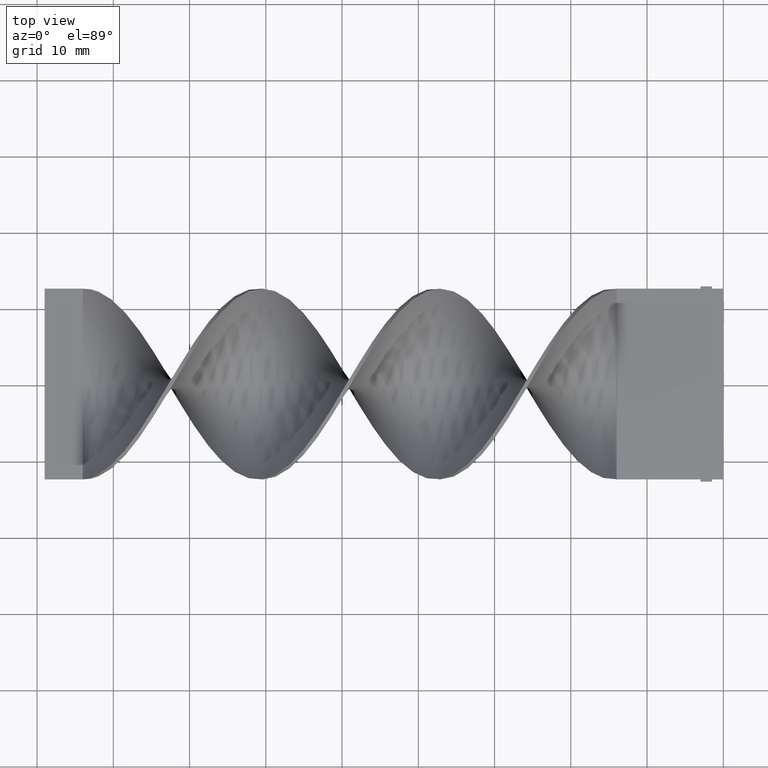
[diagram: clean part render]
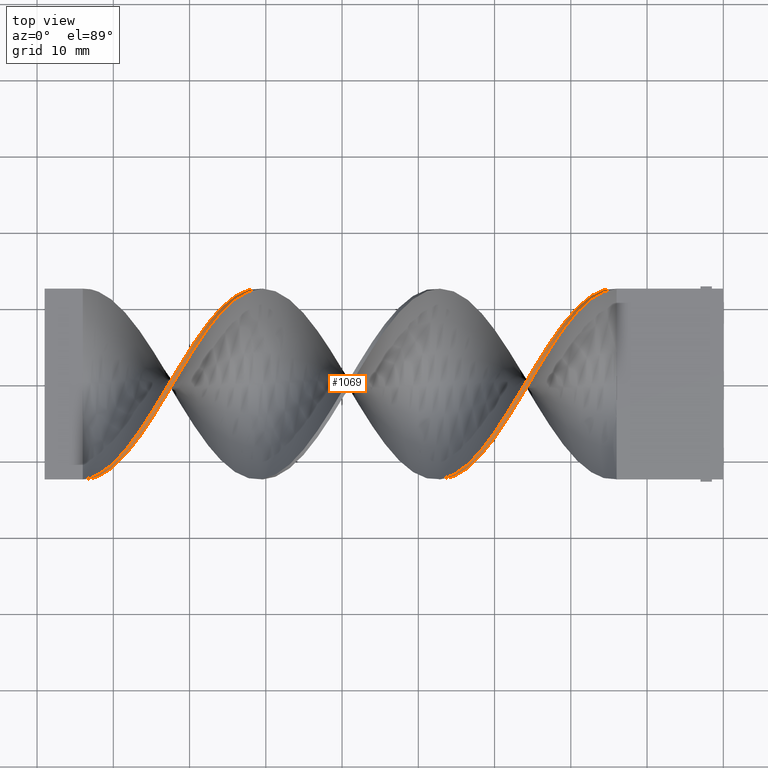
[diagram: same view with one face highlighted and labeled with its STEP entity id]
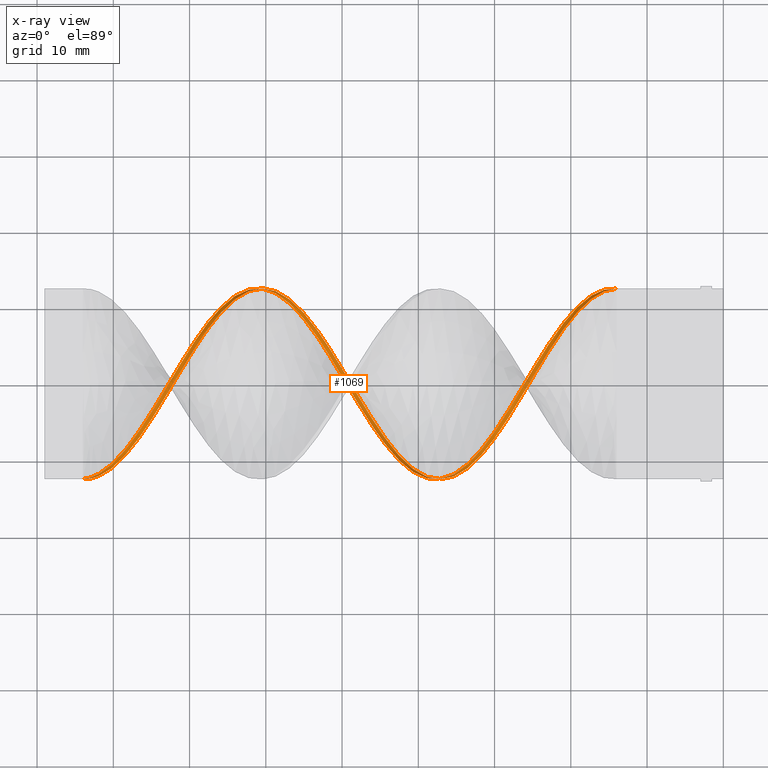
[diagram: x-ray of the same camera — body ghosted, the highlighted face saturated]
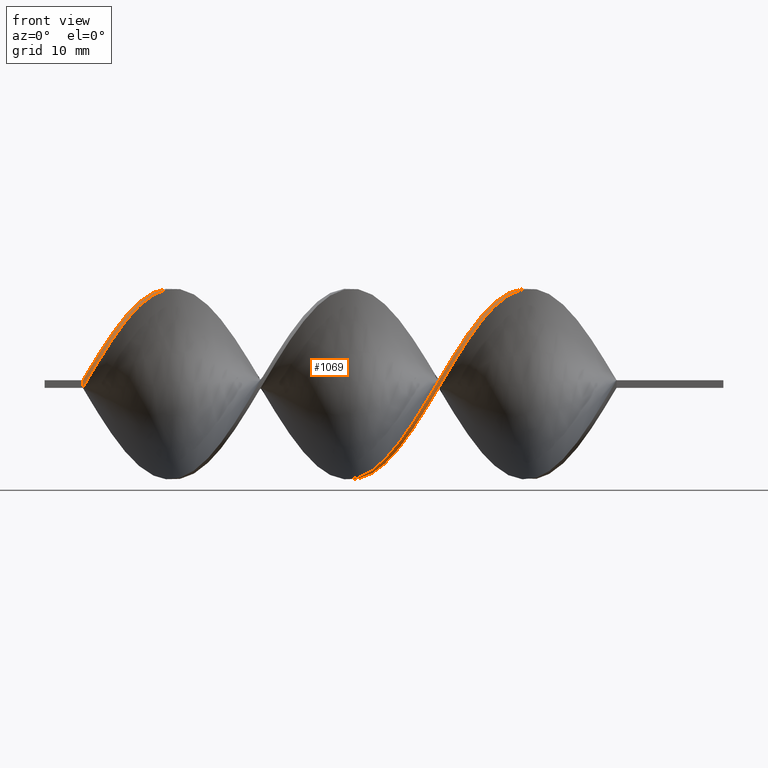
[diagram: same view with one face highlighted and labeled with its STEP entity id]
A machine part, top view. The second image highlights one B-rep face of the part: STEP entity #1069.
The next image is the same camera in x-ray: the body ghosted, the highlighted face saturated — about 2% of this face is hidden behind the body in this view.
A second angle (front view) of the same face is appended — the face is thin or edge-on in the first view.
In plain terms, the highlighted face is a freeform B-spline surface patch.
Its self-contained STEP definition (entity closure, byte-faithful):
#1 = CARTESIAN_POINT ( 'NONE',  ( -61.56410256410256920, 12.56071099161113125, 1.017774790278256569 ) ) ;
#3 = CARTESIAN_POINT ( 'NONE',  ( -19.38461538461538325, 9.687945681259160224, 7.914777853924387152 ) ) ;
#6 = CARTESIAN_POINT ( 'NONE',  ( -40.02564102564102200, -11.95215010832773217, -3.994174999484630284 ) ) ;
#8 = CARTESIAN_POINT ( 'NONE',  ( -23.87179487179487580, 2.524380470717862757, 12.34645007188563959 ) ) ;
#11 = CARTESIAN_POINT ( 'NONE',  ( -38.23076923076922640, -12.56071099161113480, -1.017774790278253905 ) ) ;
#13 = CARTESIAN_POINT ( 'NONE',  ( -22.07692307692308376, 6.297684876700516909, 10.91542446871784477 ) ) ;
#15 = CARTESIAN_POINT ( 'NONE',  ( -66.05128205128204399, 9.024823023018365475, 8.663288602095489566 ) ) ;
#22 = CARTESIAN_POINT ( 'NONE',  ( -78.61538461538461320, -9.687945681259160224, 7.914777853924392481 ) ) ;
#24 = CARTESIAN_POINT ( 'NONE',  ( -52.58974358974359120, 5.405725462660103453, -11.38356088229227225 ) ) ;
#28 = CARTESIAN_POINT ( 'NONE',  ( -68.74358974358973740, 5.405725462660112335, 11.38356088229227048 ) ) ;
#36 = EDGE_CURVE ( 'NONE', #1260, #1604, #1366, .T. ) ;
#38 = CARTESIAN_POINT ( 'NONE',  ( -78.61538461538461320, -9.024823023018365475, 8.663288602095494895 ) ) ;
#39 = CARTESIAN_POINT ( 'NONE',  ( -23.87179487179487580, 2.524380470717862757, 12.34645007188564136 ) ) ;
#40 = CARTESIAN_POINT ( 'NONE',  ( -31.05128205128205821, -7.972909339725124056, 9.759100511780301801 ) ) ;
#42 = CARTESIAN_POINT ( 'NONE',  ( -61.56410256410256920, 12.43928900838886875, 2.017774790278256791 ) ) ;
#46 = CARTESIAN_POINT ( 'NONE',  ( -65.15384615384614619, 10.64897370504628782, 6.738448275956367972 ) ) ;
#52 = CARTESIAN_POINT ( 'NONE',  ( -20.28205128205128460, 7.972909339725125832, 9.759100511780298248 ) ) ;
#62 = CARTESIAN_POINT ( 'NONE',  ( -16.69230769230769695, 11.59494076297487375, 4.936058634336738749 ) ) ;
#66 = CARTESIAN_POINT ( 'NONE',  ( -33.74358974358974450, -11.30056190668700822, 5.366311637720503569 ) ) ;
#77 = CARTESIAN_POINT ( 'NONE',  ( -84.00000000000000000, -12.50000000000000178, 0.1666666666666682117 ) ) ;
#81 = CARTESIAN_POINT ( 'NONE',  ( -60.66666666666666430, 12.49999999999999822, 0.5000000000000000000 ) ) ;
#87 = FACE_OUTER_BOUND ( 'NONE', #213, .T. ) ;
#93 = CARTESIAN_POINT ( 'NONE',  ( -40.02564102564102200, -11.59494076297487730, -4.936058634336734308 ) ) ;
#95 = CARTESIAN_POINT ( 'NONE',  ( -19.38461538461538325, 9.687945681259160224, 7.914777853924387152 ) ) ;
#101 = CARTESIAN_POINT ( 'NONE',  ( -42.71794871794872250, -9.024823023018370804, -8.663288602095487789 ) ) ;
#104 = CARTESIAN_POINT ( 'NONE',  ( -84.00000000000000000, -12.50000000000000178, 0.5000000000000015543 ) ) ;
#116 = CARTESIAN_POINT ( 'NONE',  ( -41.82051282051281760, -10.64897370504629315, -6.738448275956367084 ) ) ;
#117 = CARTESIAN_POINT ( 'NONE',  ( -34.64102564102564230, -11.95215010832773039, 3.994174999484638722 ) ) ;
#119 = CARTESIAN_POINT ( 'NONE',  ( -79.51282051282051100, -10.07673670631160867, 7.567476692410685324 ) ) ;
#127 = CARTESIAN_POINT ( 'NONE',  ( -80.41025641025640880, -11.30056190668700822, 5.366311637720503569 ) ) ;
#130 = CARTESIAN_POINT ( 'NONE',  ( -82.20512820512820440, -12.25643054996943171, 2.505974894881450421 ) ) ;
#132 = CARTESIAN_POINT ( 'NONE',  ( -51.69230769230769340, 3.965052966688984881, -11.86500547708895326 ) ) ;
#136 = CARTESIAN_POINT ( 'NONE',  ( -28.35897435897435770, -3.965052966688987546, 11.86500547708895326 ) ) ;
#142 = CARTESIAN_POINT ( 'NONE',  ( -40.92307692307691980, -11.30056190668700999, -5.366311637720500904 ) ) ;
#144 = CARTESIAN_POINT ( 'NONE',  ( -25.66666666666666785, 0.5036723384328402053, 12.59180846082103855 ) ) ;
#145 = CARTESIAN_POINT ( 'NONE',  ( -41.82051282051281760, -10.07673670631161222, -7.567476692410682659 ) ) ;
#152 = CARTESIAN_POINT ( 'NONE',  ( -73.23076923076924061, -1.010354066142510998, 12.46912926635333640 ) ) ;
#153 = CARTESIAN_POINT ( 'NONE',  ( -25.66666666666666785, -0.5036723384328426478, 12.59180846082103855 ) ) ;
#163 = CARTESIAN_POINT ( 'NONE',  ( -65.15384615384614619, 10.07673670631160512, 7.567476692410683548 ) ) ;
#164 = CARTESIAN_POINT ( 'NONE',  ( -74.12820512820512420, -2.524380470717864977, 12.34645007188564136 ) ) ;
#166 = CARTESIAN_POINT ( 'NONE',  ( -74.12820512820510999, -2.524380470717864977, 12.34645007188563959 ) ) ;
#167 = CARTESIAN_POINT ( 'NONE',  ( -30.15384615384615330, -6.689317401192620416, 10.57133069703628436 ) ) ;
#169 = CARTESIAN_POINT ( 'NONE',  ( -62.46153846153845990, 12.25643054996942816, 2.505974894881445980 ) ) ;
#195 = CARTESIAN_POINT ( 'NONE',  ( -17.58974358974358765, 11.30056190668700822, 5.366311637720501793 ) ) ;
#203 = CARTESIAN_POINT ( 'NONE',  ( -31.05128205128205465, -7.972909339725124944, 9.759100511780301801 ) ) ;
#213 = EDGE_LOOP ( 'NONE', ( #267, #994, #1220, #1198 ) ) ;
#216 = CARTESIAN_POINT ( 'NONE',  ( -17.58974358974358765, 10.83583873464323943, 6.251767663373711592 ) ) ;
#221 = CARTESIAN_POINT ( 'NONE',  ( -15.79487179487179205, 12.25643054996942816, 2.505974894881445980 ) ) ;
#225 = CARTESIAN_POINT ( 'NONE',  ( -25.66666666666666785, -0.5036723384328426478, 12.59180846082103855 ) ) ;
#226 = CARTESIAN_POINT ( 'NONE',  ( -14.89743589743589602, 12.56071099161113125, 1.017774790278256569 ) ) ;
#232 = CARTESIAN_POINT ( 'NONE',  ( -33.74358974358974450, -11.30056190668700822, 5.366311637720503569 ) ) ;
#235 = CARTESIAN_POINT ( 'NONE',  ( -45.41025641025640880, -6.297684876700524903, -10.91542446871784122 ) ) ;
#238 = CARTESIAN_POINT ( 'NONE',  ( -26.56410256410256210, -2.003062940240564860, 12.34859258609801458 ) ) ;
#241 = CARTESIAN_POINT ( 'NONE',  ( -63.35897435897436480, 11.95215010832772862, 3.994174999484634281 ) ) ;
#245 = CARTESIAN_POINT ( 'NONE',  ( -14.89743589743589602, 12.56071099161113303, 1.017774790278256791 ) ) ;
#247 = CARTESIAN_POINT ( 'NONE',  ( -48.10256410256410220, -2.003062940240573742, -12.34859258609801280 ) ) ;
#248 = CARTESIAN_POINT ( 'NONE',  ( -76.82051282051281760, -7.512301267086276546, 10.00326595030512955 ) ) ;
#251 = CARTESIAN_POINT ( 'NONE',  ( -46.30769230769230660, -4.900069209374408707, -11.51040059004641591 ) ) ;
#258 = CARTESIAN_POINT ( 'NONE',  ( -33.74358974358974450, -10.83583873464324121, 6.251767663373713368 ) ) ;
#261 = CARTESIAN_POINT ( 'NONE',  ( -13.99999999999999822, 12.49999999999999822, -0.5000000000000000000 ) ) ;
#263 = CARTESIAN_POINT ( 'NONE',  ( -73.23076923076924061, -2.003062940240564860, 12.34859258609801458 ) ) ;
#265 = CARTESIAN_POINT ( 'NONE',  ( -58.87179487179486870, 12.01711488568186681, -3.476916712307509094 ) ) ;
#267 = ORIENTED_EDGE ( 'NONE', *, *, #365, .T. ) ;
#276 =( BOUNDED_CURVE ( )  B_SPLINE_CURVE ( 2, ( #989, #968, #720, #474, #216, #1352, #1113, #1465, #337, #624, #728, #8, #1217, #225, #238, #1606, #1234, #492, #1483, #977, #1361, #883, #232, #117, #1498, #1615, #890, #1492, #860, #93, #374, #594, #101, #1091, #603, #656, #645, #1143, #1012, #1128, #400, #1262, #794, #1023, #1517, #1008, #1159, #392, #384, #672, #522, #787, #1506, #42, #1280, #543, #538, #163, #15, #1153, #528, #28, #1037, #899, #514, #1535, #263, #915, #924, #416, #248, #1257, #22, #1270, #1392, #641, #130, #764, #780 ),
 .UNSPECIFIED., .F., .T. ) 
 B_SPLINE_CURVE_WITH_KNOTS ( ( 3, 2, 2, 2, 2, 2, 2, 2, 2, 2, 2, 2, 2, 2, 2, 2, 2, 2, 2, 2, 2, 2, 2, 2, 2, 2, 2, 2, 2, 2, 2, 2, 2, 2, 2, 2, 2, 2, 2, 3 ),
 ( 0.000000000000000000, 0.01923076923076923184, 0.03846153846153846367, 0.05769230769230768857, 0.07692307692307692735, 0.09615384615384615918, 0.1153846153846153771, 0.1346153846153846090, 0.1538461538461538547, 0.1730769230769230449, 0.1923076923076923184, 0.2115384615384615363, 0.2307692307692307543, 0.2500000000000000000, 0.2692307692307692180, 0.2884615384615384359, 0.3076923076923077094, 0.3269230769230769273, 0.3461538461538460898, 0.3653846153846153633, 0.3846153846153846367, 0.4038461538461539102, 0.4230769230769230727, 0.4423076923076922906, 0.4615384615384615086, 0.4807692307692307820, 0.5000000000000000000, 0.5192307692307692735, 0.5384615384615384359, 0.5576923076923077094, 0.5769230769230768718, 0.5961538461538461453, 0.6153846153846154188, 0.6346153846153845812, 0.6538461538461538547, 0.6730769230769230171, 0.6923076923076921796, 0.7115384615384615641, 0.7307692307692307265, 0.7500000000000000000 ),
 .UNSPECIFIED. ) 
 CURVE ( )  GEOMETRIC_REPRESENTATION_ITEM ( )  RATIONAL_B_SPLINE_CURVE ( ( 1.000000000000000000, 0.9927088740980539727, 1.000000000000000000, 0.9927088740980539727, 1.000000000000000000, 0.9927088740980539727, 1.000000000000000000, 0.9927088740980539727, 1.000000000000000000, 0.9927088740980539727, 1.000000000000000000, 0.9927088740980539727, 1.000000000000000000, 0.9927088740980539727, 1.000000000000000000, 0.9927088740980539727, 1.000000000000000000, 0.9927088740980539727, 1.000000000000000000, 0.9927088740980539727, 1.000000000000000000, 0.9927088740980539727, 1.000000000000000000, 0.9927088740980539727, 1.000000000000000000, 0.9927088740980539727, 1.000000000000000000, 0.9927088740980539727, 1.000000000000000000, 0.9927088740980539727, 1.000000000000000000, 0.9927088740980539727, 1.000000000000000000, 0.9927088740980539727, 1.000000000000000000, 0.9927088740980539727, 1.000000000000000000, 0.9927088740980539727, 1.000000000000000000, 0.9927088740980539727, 1.000000000000000000, 0.9927088740980539727, 1.000000000000000000, 0.9927088740980539727, 1.000000000000000000, 0.9927088740980539727, 1.000000000000000000, 0.9927088740980539727, 1.000000000000000000, 0.9927088740980539727, 1.000000000000000000, 0.9927088740980539727, 1.000000000000000000, 0.9927088740980539727, 1.000000000000000000, 0.9927088740980539727, 1.000000000000000000, 0.9927088740980539727, 1.000000000000000000, 0.9927088740980539727, 1.000000000000000000, 0.9927088740980539727, 1.000000000000000000, 0.9927088740980539727, 1.000000000000000000, 0.9927088740980539727, 1.000000000000000000, 0.9927088740980539727, 1.000000000000000000, 0.9927088740980539727, 1.000000000000000000, 0.9927088740980539727, 1.000000000000000000, 0.9927088740980539727, 1.000000000000000000, 0.9927088740980539727, 1.000000000000000000, 0.9927088740980539727, 1.000000000000000000 ) ) 
 REPRESENTATION_ITEM ( '' )  );
#278 = CARTESIAN_POINT ( 'NONE',  ( -70.53846153846153300, 3.502453542048288071, 12.10537671137499238 ) ) ;
#281 = CARTESIAN_POINT ( 'NONE',  ( -75.92307692307693401, -6.297684876700518686, 10.91542446871784477 ) ) ;
#294 = CARTESIAN_POINT ( 'NONE',  ( -83.10256410256410220, -12.43928900838887230, 2.017774790278262564 ) ) ;
#305 = CARTESIAN_POINT ( 'NONE',  ( -70.53846153846153300, 2.524380470717862757, 12.34645007188564136 ) ) ;
#307 = CARTESIAN_POINT ( 'NONE',  ( -36.43589743589743790, -12.56071099161113658, 1.017774790278262564 ) ) ;
#310 = CARTESIAN_POINT ( 'NONE',  ( -69.64102564102564941, 4.900069209374403378, 11.51040059004641591 ) ) ;
#314 = CARTESIAN_POINT ( 'NONE',  ( -20.28205128205128460, 8.726917657472036183, 9.091107431892412549 ) ) ;
#337 = CARTESIAN_POINT ( 'NONE',  ( -21.17948717948717885, 6.689317401192619528, 10.57133069703628259 ) ) ;
#344 = CARTESIAN_POINT ( 'NONE',  ( -46.30769230769230660, -4.900069209374408707, -11.51040059004641591 ) ) ;
#358 = CARTESIAN_POINT ( 'NONE',  ( -18.48717948717948545, 10.07673670631160689, 7.567476692410683548 ) ) ;
#365 = EDGE_CURVE ( 'NONE', #1612, #1260, #466, .T. ) ;
#369 = CARTESIAN_POINT ( 'NONE',  ( -47.20512820512820440, -3.502453542048290736, -12.10537671137499238 ) ) ;
#374 = CARTESIAN_POINT ( 'NONE',  ( -40.92307692307691980, -10.83583873464324299, -6.251767663373710704 ) ) ;
#380 = CARTESIAN_POINT ( 'NONE',  ( -26.56410256410256210, -1.010354066142510998, 12.46912926635333640 ) ) ;
#384 = CARTESIAN_POINT ( 'NONE',  ( -57.07692307692307310, 11.30056190668700289, -5.366311637720509786 ) ) ;
#387 = CARTESIAN_POINT ( 'NONE',  ( -35.53846153846153300, -12.01711488568187214, 3.476916712307501989 ) ) ;
#390 = CARTESIAN_POINT ( 'NONE',  ( -77.71794871794872961, -8.726917657472034406, 9.091107431892414326 ) ) ;
#392 = CARTESIAN_POINT ( 'NONE',  ( -56.17948717948717530, 10.64897370504628604, -6.738448275956370637 ) ) ;
#395 = CARTESIAN_POINT ( 'NONE',  ( -56.17948717948717530, 10.07673670631160334, -7.567476692410687100 ) ) ;
#400 = CARTESIAN_POINT ( 'NONE',  ( -49.89743589743589069, 2.003062940240554202, -12.34859258609801635 ) ) ;
#404 = CARTESIAN_POINT ( 'NONE',  ( -72.33333333333332860, 0.5036723384328403164, 12.59180846082103855 ) ) ;
#405 = CARTESIAN_POINT ( 'NONE',  ( -26.56410256410256210, -2.003062940240564860, 12.34859258609801458 ) ) ;
#412 = CARTESIAN_POINT ( 'NONE',  ( -28.35897435897435770, -4.900069209374403378, 11.51040059004641769 ) ) ;
#413 = CARTESIAN_POINT ( 'NONE',  ( -75.02564102564102200, -4.900069209374403378, 11.51040059004641769 ) ) ;
#416 = CARTESIAN_POINT ( 'NONE',  ( -75.92307692307691980, -6.297684876700517798, 10.91542446871784655 ) ) ;
#427 = CARTESIAN_POINT ( 'NONE',  ( -65.15384615384614619, 10.64897370504628782, 6.738448275956367084 ) ) ;
#430 = CARTESIAN_POINT ( 'NONE',  ( -56.17948717948717530, 10.64897370504628604, -6.738448275956371525 ) ) ;
#434 = CARTESIAN_POINT ( 'NONE',  ( -66.05128205128204399, 9.687945681259160224, 7.914777853924387152 ) ) ;
#441 = CARTESIAN_POINT ( 'NONE',  ( -50.79487179487178850, 3.502453542048282742, -12.10537671137499238 ) ) ;
#453 = CARTESIAN_POINT ( 'NONE',  ( -40.02564102564102200, -11.59494076297487730, -4.936058634336734308 ) ) ;
#454 = CARTESIAN_POINT ( 'NONE',  ( -77.71794871794872961, -7.972909339725124056, 9.759100511780301801 ) ) ;
#464 = CARTESIAN_POINT ( 'NONE',  ( -64.25641025641024839, 10.83583873464323943, 6.251767663373711592 ) ) ;
#466 = LINE ( 'NONE', #719, #469 ) ;
#469 = VECTOR ( 'NONE', #592, 1000.000000000000000 ) ;
#474 = CARTESIAN_POINT ( 'NONE',  ( -16.69230769230769340, 11.59494076297487375, 4.936058634336738749 ) ) ;
#478 = CARTESIAN_POINT ( 'NONE',  ( -21.17948717948717885, 7.512301267086275658, 10.00326595030512777 ) ) ;
#483 = CARTESIAN_POINT ( 'NONE',  ( -54.38461538461538680, 7.972909339725115174, -9.759100511780305354 ) ) ;
#492 = CARTESIAN_POINT ( 'NONE',  ( -29.25641025641025905, -6.297684876700517798, 10.91542446871784655 ) ) ;
#505 = CARTESIAN_POINT ( 'NONE',  ( -39.12820512820512420, -12.25643054996943171, -2.505974894881441539 ) ) ;
#510 = CARTESIAN_POINT ( 'NONE',  ( -42.71794871794872250, -9.687945681259165553, -7.914777853924385376 ) ) ;
#513 = CARTESIAN_POINT ( 'NONE',  ( -22.97435897435897090, 4.900069209374403378, 11.51040059004641591 ) ) ;
#514 = CARTESIAN_POINT ( 'NONE',  ( -71.43589743589743080, 1.010354066142511442, 12.46912926635333640 ) ) ;
#516 = CARTESIAN_POINT ( 'NONE',  ( -39.12820512820512420, -12.25643054996943171, -2.505974894881441539 ) ) ;
#522 = CARTESIAN_POINT ( 'NONE',  ( -58.87179487179486870, 12.25643054996942638, -2.505974894881457526 ) ) ;
#528 = CARTESIAN_POINT ( 'NONE',  ( -67.84615384615385381, 6.689317401192619528, 10.57133069703628259 ) ) ;
#534 = VERTEX_POINT ( 'NONE', #826 ) ;
#538 = CARTESIAN_POINT ( 'NONE',  ( -64.25641025641024839, 10.83583873464323943, 6.251767663373711592 ) ) ;
#539 = CARTESIAN_POINT ( 'NONE',  ( -29.25641025641025905, -6.297684876700518686, 10.91542446871784477 ) ) ;
#543 = CARTESIAN_POINT ( 'NONE',  ( -63.35897435897436480, 11.59494076297487375, 4.936058634336738749 ) ) ;
#549 = CARTESIAN_POINT ( 'NONE',  ( -66.05128205128204399, 9.687945681259160224, 7.914777853924387152 ) ) ;
#555 = CARTESIAN_POINT ( 'NONE',  ( -75.92307692307693401, -5.405725462660114999, 11.38356088229226870 ) ) ;
#557 = CARTESIAN_POINT ( 'NONE',  ( -22.07692307692308376, 5.405725462660113223, 11.38356088229226870 ) ) ;
#565 = CARTESIAN_POINT ( 'NONE',  ( -66.94871794871794179, 7.972909339725125832, 9.759100511780298248 ) ) ;
#568 = CARTESIAN_POINT ( 'NONE',  ( -34.64102564102564230, -11.95215010832773039, 3.994174999484638722 ) ) ;
#569 = CARTESIAN_POINT ( 'NONE',  ( -71.43589743589743080, 2.003062940240565304, 12.34859258609801458 ) ) ;
#575 = CARTESIAN_POINT ( 'NONE',  ( -46.30769230769230660, -3.965052966688992875, -11.86500547708895148 ) ) ;
#577 = CARTESIAN_POINT ( 'NONE',  ( -37.33333333333332860, -12.50000000000000178, -0.4999999999999985012 ) ) ;
#581 = CARTESIAN_POINT ( 'NONE',  ( -47.20512820512820440, -2.524380470717865421, -12.34645007188564136 ) ) ;
#586 = CARTESIAN_POINT ( 'NONE',  ( -22.97435897435897090, 4.900069209374403378, 11.51040059004641591 ) ) ;
#592 = DIRECTION ( 'NONE',  ( -0.000000000000000000, -0.000000000000000000, -1.000000000000000000 ) ) ;
#594 = CARTESIAN_POINT ( 'NONE',  ( -41.82051282051281760, -10.07673670631161045, -7.567476692410682659 ) ) ;
#597 = CARTESIAN_POINT ( 'NONE',  ( -82.20512820512820440, -12.01711488568187214, 3.476916712307501989 ) ) ;
#603 = CARTESIAN_POINT ( 'NONE',  ( -44.51282051282051100, -6.689317401192623080, -10.57133069703628259 ) ) ;
#619 = CARTESIAN_POINT ( 'NONE',  ( -62.46153846153845990, 12.25643054996942816, 2.505974894881445980 ) ) ;
#622 = CARTESIAN_POINT ( 'NONE',  ( -84.00000000000000000, -12.50000000000000178, 0.5000000000000015543 ) ) ;
#623 = CARTESIAN_POINT ( 'NONE',  ( -43.61538461538461320, -8.726917657472041512, -9.091107431892407220 ) ) ;
#624 = CARTESIAN_POINT ( 'NONE',  ( -22.07692307692308020, 5.405725462660112335, 11.38356088229227048 ) ) ;
#626 = CARTESIAN_POINT ( 'NONE',  ( -83.10256410256410220, -12.43928900838887230, 2.017774790278262564 ) ) ;
#627 = CARTESIAN_POINT ( 'NONE',  ( -55.28205128205128460, 9.024823023018360146, -8.663288602095494895 ) ) ;
#630 = CARTESIAN_POINT ( 'NONE',  ( -81.30769230769233502, -11.95215010832773039, 3.994174999484638722 ) ) ;
#632 = CARTESIAN_POINT ( 'NONE',  ( -13.99999999999999822, 12.49999999999999822, 0.5000000000000000000 ) ) ;
#639 = CARTESIAN_POINT ( 'NONE',  ( -83.10256410256410220, -12.56071099161113658, 1.017774790278262564 ) ) ;
#640 = CARTESIAN_POINT ( 'NONE',  ( -51.69230769230769340, 3.965052966688984881, -11.86500547708895326 ) ) ;
#641 = CARTESIAN_POINT ( 'NONE',  ( -81.30769230769232081, -11.95215010832773039, 3.994174999484638722 ) ) ;
#645 = CARTESIAN_POINT ( 'NONE',  ( -46.30769230769230660, -3.965052966688992875, -11.86500547708895148 ) ) ;
#650 = CARTESIAN_POINT ( 'NONE',  ( -50.79487179487178850, 2.524380470717856983, -12.34645007188563959 ) ) ;
#653 = CARTESIAN_POINT ( 'NONE',  ( -27.46153846153846345, -2.524380470717864977, 12.34645007188564136 ) ) ;
#656 = CARTESIAN_POINT ( 'NONE',  ( -45.41025641025640880, -5.405725462660122105, -11.38356088229226515 ) ) ;
#660 = CARTESIAN_POINT ( 'NONE',  ( -75.92307692307691980, -5.405725462660114111, 11.38356088229227048 ) ) ;
#667 = CARTESIAN_POINT ( 'NONE',  ( -22.97435897435897090, 3.965052966688987546, 11.86500547708895148 ) ) ;
#672 = CARTESIAN_POINT ( 'NONE',  ( -57.97435897435897090, 11.95215010832772684, -3.994174999484640498 ) ) ;
#676 = CARTESIAN_POINT ( 'NONE',  ( -84.00000000000000000, -12.50000000000000178, 0.5000000000000015543 ) ) ;
#677 = CARTESIAN_POINT ( 'NONE',  ( -76.82051282051281760, -7.512301267086276546, 10.00326595030512955 ) ) ;
#679 = CARTESIAN_POINT ( 'NONE',  ( -64.25641025641024839, 11.30056190668700822, 5.366311637720501793 ) ) ;
#684 = CARTESIAN_POINT ( 'NONE',  ( -80.41025641025640880, -10.83583873464324121, 6.251767663373713368 ) ) ;
#688 = CARTESIAN_POINT ( 'NONE',  ( -63.35897435897435770, 11.59494076297487375, 4.936058634336738749 ) ) ;
#696 = CARTESIAN_POINT ( 'NONE',  ( -54.38461538461538680, 8.726917657472025525, -9.091107431892417878 ) ) ;
#705 = CARTESIAN_POINT ( 'NONE',  ( -25.66666666666666785, 0.5036723384328403164, 12.59180846082103855 ) ) ;
#710 = CARTESIAN_POINT ( 'NONE',  ( -59.76923076923077360, 12.56071099161113303, -1.017774790278264119 ) ) ;
#719 = CARTESIAN_POINT ( 'NONE',  ( -13.99999999999999822, 12.49999999999999822, 0.5000000000000000000 ) ) ;
#720 = CARTESIAN_POINT ( 'NONE',  ( -15.79487179487179205, 12.01711488568186859, 3.476916712307497548 ) ) ;
#728 = CARTESIAN_POINT ( 'NONE',  ( -22.97435897435897090, 3.965052966688987546, 11.86500547708895148 ) ) ;
#731 = CARTESIAN_POINT ( 'NONE',  ( -18.48717948717948545, 10.64897370504628782, 6.738448275956367084 ) ) ;
#736 = CARTESIAN_POINT ( 'NONE',  ( -56.17948717948717530, 10.07673670631160512, -7.567476692410687100 ) ) ;
#742 = CARTESIAN_POINT ( 'NONE',  ( -16.69230769230769340, 11.95215010832772862, 3.994174999484634281 ) ) ;
#743 = CARTESIAN_POINT ( 'NONE',  ( -34.64102564102564230, -11.59494076297487553, 4.936058634336743189 ) ) ;
#751 = CARTESIAN_POINT ( 'NONE',  ( -49.89743589743589069, 1.010354066142500118, -12.46912926635333818 ) ) ;
#753 = CARTESIAN_POINT ( 'NONE',  ( -16.69230769230769695, 11.95215010832772862, 3.994174999484634281 ) ) ;
#755 = CARTESIAN_POINT ( 'NONE',  ( -37.33333333333332860, -12.50000000000000178, 0.5000000000000015543 ) ) ;
#758 = CARTESIAN_POINT ( 'NONE',  ( -57.07692307692307310, 10.83583873464323410, -6.251767663373719586 ) ) ;
#760 = CARTESIAN_POINT ( 'NONE',  ( -21.17948717948717885, 7.512301267086275658, 10.00326595030512777 ) ) ;
#761 = CARTESIAN_POINT ( 'NONE',  ( -44.51282051282051100, -6.689317401192623080, -10.57133069703628259 ) ) ;
#763 = CARTESIAN_POINT ( 'NONE',  ( -50.79487179487178850, 2.524380470717857428, -12.34645007188564136 ) ) ;
#764 = CARTESIAN_POINT ( 'NONE',  ( -83.10256410256410220, -12.56071099161113480, 1.017774790278262564 ) ) ;
#775 = CARTESIAN_POINT ( 'NONE',  ( -37.33333333333332860, -12.50000000000000178, 0.5000000000000015543 ) ) ;
#777 = CARTESIAN_POINT ( 'NONE',  ( -15.79487179487179205, 12.25643054996942816, 2.505974894881445980 ) ) ;
#778 = CARTESIAN_POINT ( 'NONE',  ( -61.56410256410256920, 12.56071099161113303, 1.017774790278256791 ) ) ;
#780 = CARTESIAN_POINT ( 'NONE',  ( -84.00000000000000000, -12.50000000000000178, -0.4999999999999985012 ) ) ;
#785 = CARTESIAN_POINT ( 'NONE',  ( -63.35897435897435770, 11.95215010832772862, 3.994174999484634281 ) ) ;
#787 = CARTESIAN_POINT ( 'NONE',  ( -59.76923076923076650, 12.56071099161113125, -1.017774790278263897 ) ) ;
#792 = CARTESIAN_POINT ( 'NONE',  ( -58.87179487179486870, 12.01711488568186681, -3.476916712307509094 ) ) ;
#794 = CARTESIAN_POINT ( 'NONE',  ( -51.69230769230769340, 4.900069209374400714, -11.51040059004641769 ) ) ;
#795 = CARTESIAN_POINT ( 'NONE',  ( -72.33333333333332860, 0.5036723384328402053, 12.59180846082103855 ) ) ;
#799 = CARTESIAN_POINT ( 'NONE',  ( -59.76923076923077360, 12.43928900838886875, -2.017774790278263897 ) ) ;
#806 = CARTESIAN_POINT ( 'NONE',  ( -67.84615384615385381, 7.512301267086275658, 10.00326595030512777 ) ) ;
#811 = B_SPLINE_CURVE_WITH_KNOTS ( 'NONE', 3,
 ( #1192, #1057, #77, #1183 ),
 .UNSPECIFIED., .F., .F.,
 ( 4, 4 ),
 ( 0.000000000000000000, 1.000000000000000000 ),
 .UNSPECIFIED. ) ;
#815 = CARTESIAN_POINT ( 'NONE',  ( -65.15384615384614619, 10.07673670631160689, 7.567476692410683548 ) ) ;
#822 = CARTESIAN_POINT ( 'NONE',  ( -68.74358974358973740, 6.297684876700516909, 10.91542446871784477 ) ) ;
#824 = CARTESIAN_POINT ( 'NONE',  ( -70.53846153846153300, 3.502453542048288071, 12.10537671137499238 ) ) ;
#826 = CARTESIAN_POINT ( 'NONE',  ( -84.00000000000000000, -12.50000000000000178, -0.4999999999999985012 ) ) ;
#833 = CARTESIAN_POINT ( 'NONE',  ( -51.69230769230769340, 4.900069209374400714, -11.51040059004641769 ) ) ;
#835 = CARTESIAN_POINT ( 'NONE',  ( -30.15384615384615330, -7.512301267086276546, 10.00326595030512955 ) ) ;
#842 = CARTESIAN_POINT ( 'NONE',  ( -29.25641025641025905, -5.405725462660114111, 11.38356088229227048 ) ) ;
#849 = CARTESIAN_POINT ( 'NONE',  ( -24.76923076923076650, 2.003062940240565304, 12.34859258609801458 ) ) ;
#857 = CARTESIAN_POINT ( 'NONE',  ( -40.92307692307691980, -11.30056190668700999, -5.366311637720500904 ) ) ;
#860 = CARTESIAN_POINT ( 'NONE',  ( -39.12820512820512420, -12.01711488568187569, -3.476916712307494439 ) ) ;
#869 = CARTESIAN_POINT ( 'NONE',  ( -42.71794871794872250, -9.687945681259165553, -7.914777853924385376 ) ) ;
#875 = CARTESIAN_POINT ( 'NONE',  ( -36.43589743589743790, -12.43928900838887230, 2.017774790278262564 ) ) ;
#876 = CARTESIAN_POINT ( 'NONE',  ( -19.38461538461538325, 9.024823023018365475, 8.663288602095489566 ) ) ;
#880 = CARTESIAN_POINT ( 'NONE',  ( -18.48717948717948545, 10.64897370504628782, 6.738448275956367972 ) ) ;
#883 = CARTESIAN_POINT ( 'NONE',  ( -32.84615384615384670, -10.64897370504628960, 6.738448275956368860 ) ) ;
#886 = CARTESIAN_POINT ( 'NONE',  ( -59.76923076923076650, 12.43928900838886875, -2.017774790278263897 ) ) ;
#890 = CARTESIAN_POINT ( 'NONE',  ( -37.33333333333332860, -12.50000000000000178, -0.4999999999999985012 ) ) ;
#899 = CARTESIAN_POINT ( 'NONE',  ( -70.53846153846153300, 2.524380470717862757, 12.34645007188563959 ) ) ;
#908 = CARTESIAN_POINT ( 'NONE',  ( -40.02564102564102200, -11.95215010832773217, -3.994174999484630284 ) ) ;
#910 = CARTESIAN_POINT ( 'NONE',  ( -31.94871794871794535, -9.024823023018365475, 8.663288602095494895 ) ) ;
#915 = CARTESIAN_POINT ( 'NONE',  ( -74.12820512820510999, -3.502453542048290291, 12.10537671137499238 ) ) ;
#923 =( BOUNDED_SURFACE ( )  B_SPLINE_SURFACE ( 1, 2, ( 
 ( #1583, #1336, #1211, #62, #1486, #358, #876, #52, #1275, #557, #667, #39, #1266, #153, #405, #1148, #412, #539, #835, #1053, #1552, #1179, #66, #568, #1062, #307, #577, #1074, #1571, #453, #1374, #145, #1020, #1396, #761, #1247, #575, #581, #1071, #1560, #952, #441, #833, #1414, #1443, #696, #1177, #430, #1319, #936, #1568, #710, #81, #1194, #1080, #688, #464, #815, #1303, #565, #1059, #943, #1433, #305, #1028, #1277, #928, #1532, #413, #281, #677, #390, #1230, #1006, #127, #630, #1613, #639, #1261 ),
 ( #261, #245, #777, #753, #1117, #880, #3, #995, #760, #13, #513, #1255, #1504, #144, #380, #653, #136, #1141, #167, #40, #910, #1191, #1356, #743, #387, #930, #755, #1482, #505, #6, #857, #116, #869, #623, #973, #996, #344, #1341, #247, #1098, #1112, #763, #640, #1240, #1497, #483, #1474, #736, #1432, #1021, #792, #799, #1287, #778, #169, #785, #679, #46, #549, #1413, #806, #822, #310, #278, #569, #795, #1290, #164, #1295, #555, #1046, #454, #1321, #119, #1107, #987, #597, #626, #104 ) ),
 .UNSPECIFIED., .F., .F., .F. ) 
 B_SPLINE_SURFACE_WITH_KNOTS ( ( 2, 2 ),
 ( 3, 2, 2, 2, 2, 2, 2, 2, 2, 2, 2, 2, 2, 2, 2, 2, 2, 2, 2, 2, 2, 2, 2, 2, 2, 2, 2, 2, 2, 2, 2, 2, 2, 2, 2, 2, 2, 2, 2, 3 ),
 ( 0.000000000000000000, 1.000000000000000000 ),
 ( 0.000000000000000000, 0.01923076923076923184, 0.03846153846153846367, 0.05769230769230769551, 0.07692307692307692735, 0.09615384615384615918, 0.1153846153846153910, 0.1346153846153846090, 0.1538461538461538547, 0.1730769230769230727, 0.1923076923076923184, 0.2115384615384615363, 0.2307692307692307820, 0.2500000000000000000, 0.2692307692307692180, 0.2884615384615384359, 0.3076923076923077094, 0.3269230769230769273, 0.3461538461538461453, 0.3653846153846153633, 0.3846153846153846367, 0.4038461538461538547, 0.4230769230769230727, 0.4423076923076922906, 0.4615384615384615641, 0.4807692307692307820, 0.5000000000000000000, 0.5192307692307692735, 0.5384615384615384359, 0.5576923076923077094, 0.5769230769230768718, 0.5961538461538461453, 0.6153846153846154188, 0.6346153846153845812, 0.6538461538461538547, 0.6730769230769231282, 0.6923076923076922906, 0.7115384615384615641, 0.7307692307692307265, 0.7500000000000000000 ),
 .UNSPECIFIED. ) 
 GEOMETRIC_REPRESENTATION_ITEM ( )  RATIONAL_B_SPLINE_SURFACE ( (
 ( 1.000000000000000000, 0.9927088740980539727, 1.000000000000000000, 0.9927088740980539727, 1.000000000000000000, 0.9927088740980539727, 1.000000000000000000, 0.9927088740980539727, 1.000000000000000000, 0.9927088740980539727, 1.000000000000000000, 0.9927088740980539727, 1.000000000000000000, 0.9927088740980539727, 1.000000000000000000, 0.9927088740980539727, 1.000000000000000000, 0.9927088740980539727, 1.000000000000000000, 0.9927088740980539727, 1.000000000000000000, 0.9927088740980539727, 1.000000000000000000, 0.9927088740980539727, 1.000000000000000000, 0.9927088740980539727, 1.000000000000000000, 0.9927088740980539727, 1.000000000000000000, 0.9927088740980539727, 1.000000000000000000, 0.9927088740980539727, 1.000000000000000000, 0.9927088740980539727, 1.000000000000000000, 0.9927088740980539727, 1.000000000000000000, 0.9927088740980539727, 1.000000000000000000, 0.9927088740980539727, 1.000000000000000000, 0.9927088740980539727, 1.000000000000000000, 0.9927088740980539727, 1.000000000000000000, 0.9927088740980539727, 1.000000000000000000, 0.9927088740980539727, 1.000000000000000000, 0.9927088740980539727, 1.000000000000000000, 0.9927088740980539727, 1.000000000000000000, 0.9927088740980539727, 1.000000000000000000, 0.9927088740980539727, 1.000000000000000000, 0.9927088740980539727, 1.000000000000000000, 0.9927088740980539727, 1.000000000000000000, 0.9927088740980539727, 1.000000000000000000, 0.9927088740980539727, 1.000000000000000000, 0.9927088740980539727, 1.000000000000000000, 0.9927088740980539727, 1.000000000000000000, 0.9927088740980539727, 1.000000000000000000, 0.9927088740980539727, 1.000000000000000000, 0.9927088740980539727, 1.000000000000000000, 0.9927088740980539727, 1.000000000000000000, 0.9927088740980539727, 1.000000000000000000),
 ( 1.000000000000000000, 0.9927088740980539727, 1.000000000000000000, 0.9927088740980539727, 1.000000000000000000, 0.9927088740980539727, 1.000000000000000000, 0.9927088740980539727, 1.000000000000000000, 0.9927088740980539727, 1.000000000000000000, 0.9927088740980539727, 1.000000000000000000, 0.9927088740980539727, 1.000000000000000000, 0.9927088740980539727, 1.000000000000000000, 0.9927088740980539727, 1.000000000000000000, 0.9927088740980539727, 1.000000000000000000, 0.9927088740980539727, 1.000000000000000000, 0.9927088740980539727, 1.000000000000000000, 0.9927088740980539727, 1.000000000000000000, 0.9927088740980539727, 1.000000000000000000, 0.9927088740980539727, 1.000000000000000000, 0.9927088740980539727, 1.000000000000000000, 0.9927088740980539727, 1.000000000000000000, 0.9927088740980539727, 1.000000000000000000, 0.9927088740980539727, 1.000000000000000000, 0.9927088740980539727, 1.000000000000000000, 0.9927088740980539727, 1.000000000000000000, 0.9927088740980539727, 1.000000000000000000, 0.9927088740980539727, 1.000000000000000000, 0.9927088740980539727, 1.000000000000000000, 0.9927088740980539727, 1.000000000000000000, 0.9927088740980539727, 1.000000000000000000, 0.9927088740980539727, 1.000000000000000000, 0.9927088740980539727, 1.000000000000000000, 0.9927088740980539727, 1.000000000000000000, 0.9927088740980539727, 1.000000000000000000, 0.9927088740980539727, 1.000000000000000000, 0.9927088740980539727, 1.000000000000000000, 0.9927088740980539727, 1.000000000000000000, 0.9927088740980539727, 1.000000000000000000, 0.9927088740980539727, 1.000000000000000000, 0.9927088740980539727, 1.000000000000000000, 0.9927088740980539727, 1.000000000000000000, 0.9927088740980539727, 1.000000000000000000, 0.9927088740980539727, 1.000000000000000000) ) ) 
 REPRESENTATION_ITEM ( '' )  SURFACE ( )  );
#924 = CARTESIAN_POINT ( 'NONE',  ( -75.02564102564102200, -4.900069209374403378, 11.51040059004641769 ) ) ;
#928 = CARTESIAN_POINT ( 'NONE',  ( -73.23076923076924061, -2.003062940240564860, 12.34859258609801458 ) ) ;
#930 = CARTESIAN_POINT ( 'NONE',  ( -36.43589743589743790, -12.43928900838887230, 2.017774790278262564 ) ) ;
#936 = CARTESIAN_POINT ( 'NONE',  ( -57.97435897435897090, 11.95215010832772684, -3.994174999484640498 ) ) ;
#943 = CARTESIAN_POINT ( 'NONE',  ( -68.74358974358973740, 5.405725462660113223, 11.38356088229226870 ) ) ;
#952 = CARTESIAN_POINT ( 'NONE',  ( -49.89743589743589069, 2.003062940240554202, -12.34859258609801635 ) ) ;
#968 = CARTESIAN_POINT ( 'NONE',  ( -14.89743589743589602, 12.43928900838886875, 2.017774790278256791 ) ) ;
#971 = CARTESIAN_POINT ( 'NONE',  ( -23.87179487179487580, 3.502453542048288071, 12.10537671137499238 ) ) ;
#973 = CARTESIAN_POINT ( 'NONE',  ( -44.51282051282051100, -7.512301267086279211, -10.00326595030512777 ) ) ;
#977 = CARTESIAN_POINT ( 'NONE',  ( -31.05128205128205465, -8.726917657472034406, 9.091107431892416102 ) ) ;
#987 = CARTESIAN_POINT ( 'NONE',  ( -81.30769230769233502, -11.59494076297487553, 4.936058634336743189 ) ) ;
#989 = CARTESIAN_POINT ( 'NONE',  ( -13.99999999999999822, 12.49999999999999822, 0.5000000000000000000 ) ) ;
#994 = ORIENTED_EDGE ( 'NONE', *, *, #36, .T. ) ;
#995 = CARTESIAN_POINT ( 'NONE',  ( -20.28205128205128460, 8.726917657472036183, 9.091107431892410773 ) ) ;
#996 = CARTESIAN_POINT ( 'NONE',  ( -45.41025641025640880, -6.297684876700524903, -10.91542446871784122 ) ) ;
#999 = EDGE_CURVE ( 'NONE', #534, #1604, #811, .T. ) ;
#1003 = CARTESIAN_POINT ( 'NONE',  ( -31.94871794871794535, -9.024823023018365475, 8.663288602095494895 ) ) ;
#1006 = CARTESIAN_POINT ( 'NONE',  ( -79.51282051282051100, -10.64897370504628960, 6.738448275956369748 ) ) ;
#1008 = CARTESIAN_POINT ( 'NONE',  ( -54.38461538461538680, 8.726917657472025525, -9.091107431892417878 ) ) ;
#1012 = CARTESIAN_POINT ( 'NONE',  ( -48.10256410256410220, -1.010354066142519658, -12.46912926635333818 ) ) ;
#1015 = CARTESIAN_POINT ( 'NONE',  ( -53.48717948717948900, 6.689317401192615087, -10.57133069703628614 ) ) ;
#1020 = CARTESIAN_POINT ( 'NONE',  ( -42.71794871794872250, -9.024823023018370804, -8.663288602095487789 ) ) ;
#1021 = CARTESIAN_POINT ( 'NONE',  ( -57.97435897435897090, 11.59494076297487197, -4.936058634336744966 ) ) ;
#1023 = CARTESIAN_POINT ( 'NONE',  ( -52.58974358974359120, 6.297684876700509804, -10.91542446871784655 ) ) ;
#1028 = CARTESIAN_POINT ( 'NONE',  ( -71.43589743589743080, 1.010354066142511442, 12.46912926635333640 ) ) ;
#1037 = CARTESIAN_POINT ( 'NONE',  ( -69.64102564102564941, 3.965052966688987546, 11.86500547708895148 ) ) ;
#1041 = CARTESIAN_POINT ( 'NONE',  ( -69.64102564102564941, 4.900069209374403378, 11.51040059004641591 ) ) ;
#1046 = CARTESIAN_POINT ( 'NONE',  ( -76.82051282051281760, -6.689317401192620416, 10.57133069703628436 ) ) ;
#1047 = CARTESIAN_POINT ( 'NONE',  ( -13.99999999999999822, 12.49999999999999822, -0.5000000000000000000 ) ) ;
#1053 = CARTESIAN_POINT ( 'NONE',  ( -31.05128205128205821, -8.726917657472034406, 9.091107431892414326 ) ) ;
#1057 = CARTESIAN_POINT ( 'NONE',  ( -84.00000000000000000, -12.50000000000000178, -0.1666666666666651586 ) ) ;
#1059 = CARTESIAN_POINT ( 'NONE',  ( -67.84615384615385381, 6.689317401192619528, 10.57133069703628259 ) ) ;
#1062 = CARTESIAN_POINT ( 'NONE',  ( -35.53846153846153300, -12.25643054996943171, 2.505974894881450421 ) ) ;
#1069 = ADVANCED_FACE ( 'NONE', ( #87 ), #923, .T. ) ;
#1071 = CARTESIAN_POINT ( 'NONE',  ( -48.10256410256410220, -1.010354066142519658, -12.46912926635333818 ) ) ;
#1074 = CARTESIAN_POINT ( 'NONE',  ( -38.23076923076922640, -12.43928900838887230, -2.017774790278253683 ) ) ;
#1080 = CARTESIAN_POINT ( 'NONE',  ( -62.46153846153845990, 12.01711488568186859, 3.476916712307497548 ) ) ;
#1091 = CARTESIAN_POINT ( 'NONE',  ( -43.61538461538461320, -7.972909339725132050, -9.759100511780294696 ) ) ;
#1098 = CARTESIAN_POINT ( 'NONE',  ( -49.00000000000000711, -0.5036723384328456454, -12.59180846082103855 ) ) ;
#1107 = CARTESIAN_POINT ( 'NONE',  ( -80.41025641025640880, -10.83583873464324121, 6.251767663373713368 ) ) ;
#1112 = CARTESIAN_POINT ( 'NONE',  ( -49.89743589743589069, 1.010354066142500118, -12.46912926635333818 ) ) ;
#1113 = CARTESIAN_POINT ( 'NONE',  ( -19.38461538461538325, 9.024823023018365475, 8.663288602095489566 ) ) ;
#1115 = CARTESIAN_POINT ( 'NONE',  ( -57.97435897435897090, 11.59494076297487197, -4.936058634336744966 ) ) ;
#1117 = CARTESIAN_POINT ( 'NONE',  ( -17.58974358974358765, 11.30056190668700822, 5.366311637720501793 ) ) ;
#1124 = CARTESIAN_POINT ( 'NONE',  ( -34.64102564102564230, -11.59494076297487553, 4.936058634336743189 ) ) ;
#1128 = CARTESIAN_POINT ( 'NONE',  ( -49.00000000000000000, 0.5036723384328372077, -12.59180846082103855 ) ) ;
#1141 = CARTESIAN_POINT ( 'NONE',  ( -29.25641025641025905, -5.405725462660114999, 11.38356088229226870 ) ) ;
#1143 = CARTESIAN_POINT ( 'NONE',  ( -47.20512820512820440, -2.524380470717865421, -12.34645007188563959 ) ) ;
#1146 = CARTESIAN_POINT ( 'NONE',  ( -76.82051282051281760, -6.689317401192620416, 10.57133069703628436 ) ) ;
#1148 = CARTESIAN_POINT ( 'NONE',  ( -27.46153846153846345, -3.502453542048290291, 12.10537671137499238 ) ) ;
#1153 = CARTESIAN_POINT ( 'NONE',  ( -66.94871794871795601, 7.972909339725126721, 9.759100511780298248 ) ) ;
#1156 = CARTESIAN_POINT ( 'NONE',  ( -71.43589743589743080, 2.003062940240565304, 12.34859258609801458 ) ) ;
#1159 = CARTESIAN_POINT ( 'NONE',  ( -55.28205128205128460, 9.687945681259156672, -7.914777853924392481 ) ) ;
#1174 = CARTESIAN_POINT ( 'NONE',  ( -77.71794871794874382, -7.972909339725124944, 9.759100511780301801 ) ) ;
#1177 = CARTESIAN_POINT ( 'NONE',  ( -55.28205128205128460, 9.687945681259156672, -7.914777853924392481 ) ) ;
#1179 = CARTESIAN_POINT ( 'NONE',  ( -32.84615384615384670, -10.64897370504628960, 6.738448275956369748 ) ) ;
#1183 = CARTESIAN_POINT ( 'NONE',  ( -84.00000000000000000, -12.50000000000000178, 0.5000000000000015543 ) ) ;
#1190 = CARTESIAN_POINT ( 'NONE',  ( -27.46153846153846345, -2.524380470717864977, 12.34645007188563959 ) ) ;
#1191 = CARTESIAN_POINT ( 'NONE',  ( -32.84615384615384670, -10.07673670631160867, 7.567476692410685324 ) ) ;
#1192 = CARTESIAN_POINT ( 'NONE',  ( -84.00000000000000000, -12.50000000000000178, -0.4999999999999985012 ) ) ;
#1194 = CARTESIAN_POINT ( 'NONE',  ( -61.56410256410256920, 12.43928900838886875, 2.017774790278256791 ) ) ;
#1198 = ORIENTED_EDGE ( 'NONE', *, *, #1480, .F. ) ;
#1211 = CARTESIAN_POINT ( 'NONE',  ( -15.79487179487179205, 12.01711488568186859, 3.476916712307497548 ) ) ;
#1217 = CARTESIAN_POINT ( 'NONE',  ( -24.76923076923076650, 1.010354066142511442, 12.46912926635333640 ) ) ;
#1220 = ORIENTED_EDGE ( 'NONE', *, *, #999, .F. ) ;
#1228 = CARTESIAN_POINT ( 'NONE',  ( -22.07692307692308020, 6.297684876700516021, 10.91542446871784655 ) ) ;
#1230 = CARTESIAN_POINT ( 'NONE',  ( -78.61538461538461320, -9.687945681259160224, 7.914777853924392481 ) ) ;
#1234 = CARTESIAN_POINT ( 'NONE',  ( -28.35897435897435770, -4.900069209374403378, 11.51040059004641769 ) ) ;
#1240 = CARTESIAN_POINT ( 'NONE',  ( -52.58974358974358410, 5.405725462660103453, -11.38356088229227048 ) ) ;
#1245 = CARTESIAN_POINT ( 'NONE',  ( -64.25641025641024839, 11.30056190668700822, 5.366311637720501793 ) ) ;
#1247 = CARTESIAN_POINT ( 'NONE',  ( -45.41025641025640880, -5.405725462660122993, -11.38356088229226515 ) ) ;
#1253 = CARTESIAN_POINT ( 'NONE',  ( -48.10256410256410220, -2.003062940240573742, -12.34859258609801280 ) ) ;
#1255 = CARTESIAN_POINT ( 'NONE',  ( -23.87179487179487580, 3.502453542048288071, 12.10537671137499238 ) ) ;
#1257 = CARTESIAN_POINT ( 'NONE',  ( -77.71794871794874382, -8.726917657472034406, 9.091107431892416102 ) ) ;
#1260 = VERTEX_POINT ( 'NONE', #1047 ) ;
#1261 = CARTESIAN_POINT ( 'NONE',  ( -84.00000000000000000, -12.50000000000000178, -0.4999999999999985012 ) ) ;
#1262 = CARTESIAN_POINT ( 'NONE',  ( -50.79487179487178850, 3.502453542048282742, -12.10537671137499238 ) ) ;
#1265 = CARTESIAN_POINT ( 'NONE',  ( -60.66666666666666430, 12.49999999999999822, -0.5000000000000000000 ) ) ;
#1266 = CARTESIAN_POINT ( 'NONE',  ( -24.76923076923076650, 1.010354066142511442, 12.46912926635333640 ) ) ;
#1270 = CARTESIAN_POINT ( 'NONE',  ( -79.51282051282051100, -10.64897370504628960, 6.738448275956368860 ) ) ;
#1275 = CARTESIAN_POINT ( 'NONE',  ( -21.17948717948717885, 6.689317401192619528, 10.57133069703628259 ) ) ;
#1277 = CARTESIAN_POINT ( 'NONE',  ( -72.33333333333332860, -0.5036723384328426478, 12.59180846082103855 ) ) ;
#1280 = CARTESIAN_POINT ( 'NONE',  ( -62.46153846153845990, 12.01711488568186859, 3.476916712307497548 ) ) ;
#1287 = CARTESIAN_POINT ( 'NONE',  ( -60.66666666666666430, 12.49999999999999822, -0.5000000000000000000 ) ) ;
#1290 = CARTESIAN_POINT ( 'NONE',  ( -73.23076923076924061, -1.010354066142510998, 12.46912926635333640 ) ) ;
#1295 = CARTESIAN_POINT ( 'NONE',  ( -75.02564102564102200, -3.965052966688987546, 11.86500547708895326 ) ) ;
#1303 = CARTESIAN_POINT ( 'NONE',  ( -66.05128205128204399, 9.024823023018365475, 8.663288602095489566 ) ) ;
#1319 = CARTESIAN_POINT ( 'NONE',  ( -57.07692307692307310, 11.30056190668700289, -5.366311637720509786 ) ) ;
#1321 = CARTESIAN_POINT ( 'NONE',  ( -78.61538461538461320, -9.024823023018365475, 8.663288602095494895 ) ) ;
#1324 = CARTESIAN_POINT ( 'NONE',  ( -30.15384615384615330, -6.689317401192620416, 10.57133069703628436 ) ) ;
#1336 = CARTESIAN_POINT ( 'NONE',  ( -14.89743589743589602, 12.43928900838886875, 2.017774790278256791 ) ) ;
#1341 = CARTESIAN_POINT ( 'NONE',  ( -47.20512820512820440, -3.502453542048290736, -12.10537671137499238 ) ) ;
#1352 = CARTESIAN_POINT ( 'NONE',  ( -18.48717948717948545, 10.07673670631160512, 7.567476692410683548 ) ) ;
#1356 = CARTESIAN_POINT ( 'NONE',  ( -33.74358974358974450, -10.83583873464324121, 6.251767663373713368 ) ) ;
#1361 = CARTESIAN_POINT ( 'NONE',  ( -31.94871794871794535, -9.687945681259160224, 7.914777853924392481 ) ) ;
#1364 = CARTESIAN_POINT ( 'NONE',  ( -43.61538461538461320, -8.726917657472041512, -9.091107431892408997 ) ) ;
#1366 =( BOUNDED_CURVE ( )  B_SPLINE_CURVE ( 2, ( #1478, #226, #221, #742, #195, #731, #95, #314, #478, #1228, #586, #971, #849, #705, #1467, #1190, #1450, #842, #1324, #203, #1003, #1382, #258, #1124, #1610, #875, #775, #11, #516, #908, #142, #1485, #510, #1364, #1502, #235, #251, #369, #1253, #1373, #751, #650, #132, #24, #1015, #1514, #627, #395, #758, #1115, #265, #886, #1265, #1, #619, #241, #1245, #427, #434, #1522, #1547, #1426, #1041, #824, #1156, #404, #152, #166, #1539, #660, #1146, #1174, #38, #1529, #684, #1410, #1417, #294, #676 ),
 .UNSPECIFIED., .F., .T. ) 
 B_SPLINE_CURVE_WITH_KNOTS ( ( 3, 2, 2, 2, 2, 2, 2, 2, 2, 2, 2, 2, 2, 2, 2, 2, 2, 2, 2, 2, 2, 2, 2, 2, 2, 2, 2, 2, 2, 2, 2, 2, 2, 2, 2, 2, 2, 2, 2, 3 ),
 ( 0.000000000000000000, 0.01923076923076923184, 0.03846153846153846367, 0.05769230769230768857, 0.07692307692307692735, 0.09615384615384615918, 0.1153846153846153771, 0.1346153846153846090, 0.1538461538461538547, 0.1730769230769230449, 0.1923076923076923184, 0.2115384615384615363, 0.2307692307692307543, 0.2500000000000000000, 0.2692307692307692180, 0.2884615384615384359, 0.3076923076923077094, 0.3269230769230769273, 0.3461538461538460898, 0.3653846153846153633, 0.3846153846153846367, 0.4038461538461539102, 0.4230769230769230727, 0.4423076923076922906, 0.4615384615384615086, 0.4807692307692307820, 0.5000000000000000000, 0.5192307692307692735, 0.5384615384615384359, 0.5576923076923077094, 0.5769230769230768718, 0.5961538461538461453, 0.6153846153846154188, 0.6346153846153845812, 0.6538461538461538547, 0.6730769230769230171, 0.6923076923076921796, 0.7115384615384615641, 0.7307692307692307265, 0.7500000000000000000 ),
 .UNSPECIFIED. ) 
 CURVE ( )  GEOMETRIC_REPRESENTATION_ITEM ( )  RATIONAL_B_SPLINE_CURVE ( ( 1.000000000000000000, 0.9927088740980539727, 1.000000000000000000, 0.9927088740980539727, 1.000000000000000000, 0.9927088740980539727, 1.000000000000000000, 0.9927088740980539727, 1.000000000000000000, 0.9927088740980539727, 1.000000000000000000, 0.9927088740980539727, 1.000000000000000000, 0.9927088740980539727, 1.000000000000000000, 0.9927088740980539727, 1.000000000000000000, 0.9927088740980539727, 1.000000000000000000, 0.9927088740980539727, 1.000000000000000000, 0.9927088740980539727, 1.000000000000000000, 0.9927088740980539727, 1.000000000000000000, 0.9927088740980539727, 1.000000000000000000, 0.9927088740980539727, 1.000000000000000000, 0.9927088740980539727, 1.000000000000000000, 0.9927088740980539727, 1.000000000000000000, 0.9927088740980539727, 1.000000000000000000, 0.9927088740980539727, 1.000000000000000000, 0.9927088740980539727, 1.000000000000000000, 0.9927088740980539727, 1.000000000000000000, 0.9927088740980539727, 1.000000000000000000, 0.9927088740980539727, 1.000000000000000000, 0.9927088740980539727, 1.000000000000000000, 0.9927088740980539727, 1.000000000000000000, 0.9927088740980539727, 1.000000000000000000, 0.9927088740980539727, 1.000000000000000000, 0.9927088740980539727, 1.000000000000000000, 0.9927088740980539727, 1.000000000000000000, 0.9927088740980539727, 1.000000000000000000, 0.9927088740980539727, 1.000000000000000000, 0.9927088740980539727, 1.000000000000000000, 0.9927088740980539727, 1.000000000000000000, 0.9927088740980539727, 1.000000000000000000, 0.9927088740980539727, 1.000000000000000000, 0.9927088740980539727, 1.000000000000000000, 0.9927088740980539727, 1.000000000000000000, 0.9927088740980539727, 1.000000000000000000, 0.9927088740980539727, 1.000000000000000000, 0.9927088740980539727, 1.000000000000000000 ) ) 
 REPRESENTATION_ITEM ( '' )  );
#1373 = CARTESIAN_POINT ( 'NONE',  ( -49.00000000000000000, -0.5036723384328456454, -12.59180846082103855 ) ) ;
#1374 = CARTESIAN_POINT ( 'NONE',  ( -40.92307692307691980, -10.83583873464324299, -6.251767663373710704 ) ) ;
#1382 = CARTESIAN_POINT ( 'NONE',  ( -32.84615384615384670, -10.07673670631160689, 7.567476692410685324 ) ) ;
#1392 = CARTESIAN_POINT ( 'NONE',  ( -80.41025641025640880, -11.30056190668700822, 5.366311637720503569 ) ) ;
#1396 = CARTESIAN_POINT ( 'NONE',  ( -43.61538461538461320, -7.972909339725131161, -9.759100511780294696 ) ) ;
#1410 = CARTESIAN_POINT ( 'NONE',  ( -81.30769230769232081, -11.59494076297487553, 4.936058634336743189 ) ) ;
#1413 = CARTESIAN_POINT ( 'NONE',  ( -66.94871794871794179, 8.726917657472036183, 9.091107431892410773 ) ) ;
#1414 = CARTESIAN_POINT ( 'NONE',  ( -52.58974358974358410, 6.297684876700509804, -10.91542446871784477 ) ) ;
#1417 = CARTESIAN_POINT ( 'NONE',  ( -82.20512820512820440, -12.01711488568187214, 3.476916712307501989 ) ) ;
#1426 = CARTESIAN_POINT ( 'NONE',  ( -68.74358974358973740, 6.297684876700516021, 10.91542446871784655 ) ) ;
#1432 = CARTESIAN_POINT ( 'NONE',  ( -57.07692307692307310, 10.83583873464323410, -6.251767663373719586 ) ) ;
#1433 = CARTESIAN_POINT ( 'NONE',  ( -69.64102564102564941, 3.965052966688987546, 11.86500547708895148 ) ) ;
#1443 = CARTESIAN_POINT ( 'NONE',  ( -53.48717948717948900, 7.512301267086271217, -10.00326595030513133 ) ) ;
#1450 = CARTESIAN_POINT ( 'NONE',  ( -28.35897435897435770, -3.965052966688987546, 11.86500547708895326 ) ) ;
#1465 = CARTESIAN_POINT ( 'NONE',  ( -20.28205128205128460, 7.972909339725126721, 9.759100511780298248 ) ) ;
#1467 = CARTESIAN_POINT ( 'NONE',  ( -26.56410256410256210, -1.010354066142510998, 12.46912926635333640 ) ) ;
#1474 = CARTESIAN_POINT ( 'NONE',  ( -55.28205128205128460, 9.024823023018360146, -8.663288602095494895 ) ) ;
#1478 = CARTESIAN_POINT ( 'NONE',  ( -13.99999999999999822, 12.49999999999999822, -0.5000000000000000000 ) ) ;
#1480 = EDGE_CURVE ( 'NONE', #1612, #534, #276, .T. ) ;
#1482 = CARTESIAN_POINT ( 'NONE',  ( -38.23076923076922640, -12.56071099161113658, -1.017774790278253905 ) ) ;
#1483 = CARTESIAN_POINT ( 'NONE',  ( -30.15384615384615330, -7.512301267086276546, 10.00326595030512955 ) ) ;
#1485 = CARTESIAN_POINT ( 'NONE',  ( -41.82051282051281760, -10.64897370504629315, -6.738448275956366196 ) ) ;
#1486 = CARTESIAN_POINT ( 'NONE',  ( -17.58974358974358765, 10.83583873464323943, 6.251767663373711592 ) ) ;
#1492 = CARTESIAN_POINT ( 'NONE',  ( -38.23076923076922640, -12.43928900838887230, -2.017774790278253683 ) ) ;
#1497 = CARTESIAN_POINT ( 'NONE',  ( -53.48717948717948900, 6.689317401192615087, -10.57133069703628614 ) ) ;
#1498 = CARTESIAN_POINT ( 'NONE',  ( -35.53846153846153300, -12.25643054996943171, 2.505974894881450421 ) ) ;
#1502 = CARTESIAN_POINT ( 'NONE',  ( -44.51282051282051100, -7.512301267086279211, -10.00326595030512777 ) ) ;
#1504 = CARTESIAN_POINT ( 'NONE',  ( -24.76923076923076650, 2.003062940240565304, 12.34859258609801458 ) ) ;
#1506 = CARTESIAN_POINT ( 'NONE',  ( -60.66666666666666430, 12.49999999999999822, 0.5000000000000000000 ) ) ;
#1514 = CARTESIAN_POINT ( 'NONE',  ( -54.38461538461538680, 7.972909339725116062, -9.759100511780305354 ) ) ;
#1517 = CARTESIAN_POINT ( 'NONE',  ( -53.48717948717948900, 7.512301267086271217, -10.00326595030513133 ) ) ;
#1522 = CARTESIAN_POINT ( 'NONE',  ( -66.94871794871795601, 8.726917657472036183, 9.091107431892412549 ) ) ;
#1529 = CARTESIAN_POINT ( 'NONE',  ( -79.51282051282051100, -10.07673670631160689, 7.567476692410685324 ) ) ;
#1532 = CARTESIAN_POINT ( 'NONE',  ( -74.12820512820512420, -3.502453542048290291, 12.10537671137499238 ) ) ;
#1535 = CARTESIAN_POINT ( 'NONE',  ( -72.33333333333332860, -0.5036723384328426478, 12.59180846082103855 ) ) ;
#1539 = CARTESIAN_POINT ( 'NONE',  ( -75.02564102564102200, -3.965052966688987546, 11.86500547708895326 ) ) ;
#1547 = CARTESIAN_POINT ( 'NONE',  ( -67.84615384615385381, 7.512301267086275658, 10.00326595030512777 ) ) ;
#1552 = CARTESIAN_POINT ( 'NONE',  ( -31.94871794871794535, -9.687945681259160224, 7.914777853924392481 ) ) ;
#1560 = CARTESIAN_POINT ( 'NONE',  ( -49.00000000000000711, 0.5036723384328373188, -12.59180846082103855 ) ) ;
#1568 = CARTESIAN_POINT ( 'NONE',  ( -58.87179487179486870, 12.25643054996942638, -2.505974894881457526 ) ) ;
#1571 = CARTESIAN_POINT ( 'NONE',  ( -39.12820512820512420, -12.01711488568187569, -3.476916712307494439 ) ) ;
#1583 = CARTESIAN_POINT ( 'NONE',  ( -13.99999999999999822, 12.49999999999999822, 0.5000000000000000000 ) ) ;
#1604 = VERTEX_POINT ( 'NONE', #622 ) ;
#1606 = CARTESIAN_POINT ( 'NONE',  ( -27.46153846153846345, -3.502453542048290291, 12.10537671137499238 ) ) ;
#1610 = CARTESIAN_POINT ( 'NONE',  ( -35.53846153846153300, -12.01711488568187214, 3.476916712307501989 ) ) ;
#1612 = VERTEX_POINT ( 'NONE', #632 ) ;
#1613 = CARTESIAN_POINT ( 'NONE',  ( -82.20512820512820440, -12.25643054996943171, 2.505974894881450421 ) ) ;
#1615 = CARTESIAN_POINT ( 'NONE',  ( -36.43589743589743790, -12.56071099161113480, 1.017774790278262564 ) ) ;